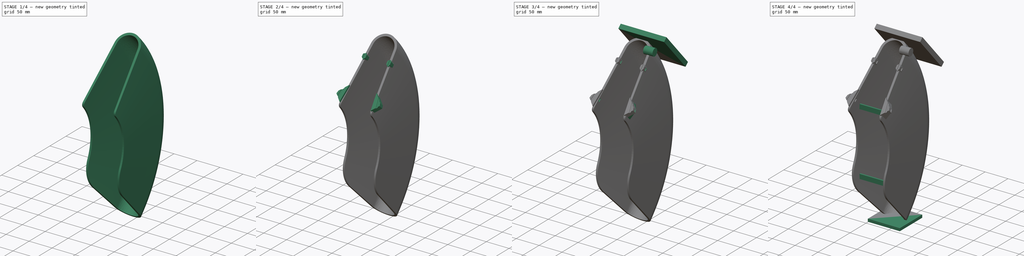
[diagram: build sequence overview — one tinted view per stage of 4, left to right]
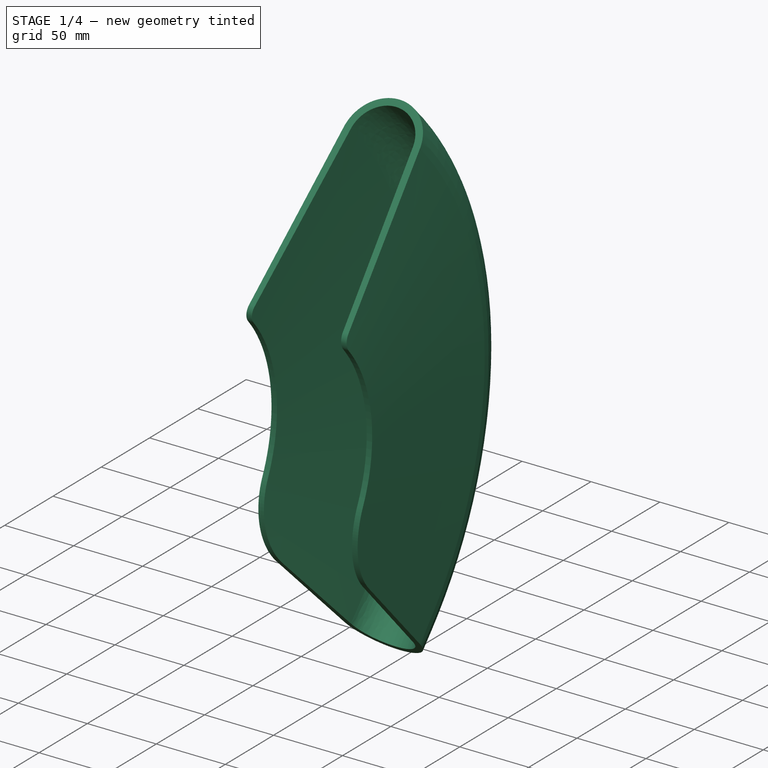
[diagram: stage 1 of 4 — iso view after this stage's code; geometry added in this stage tinted green]
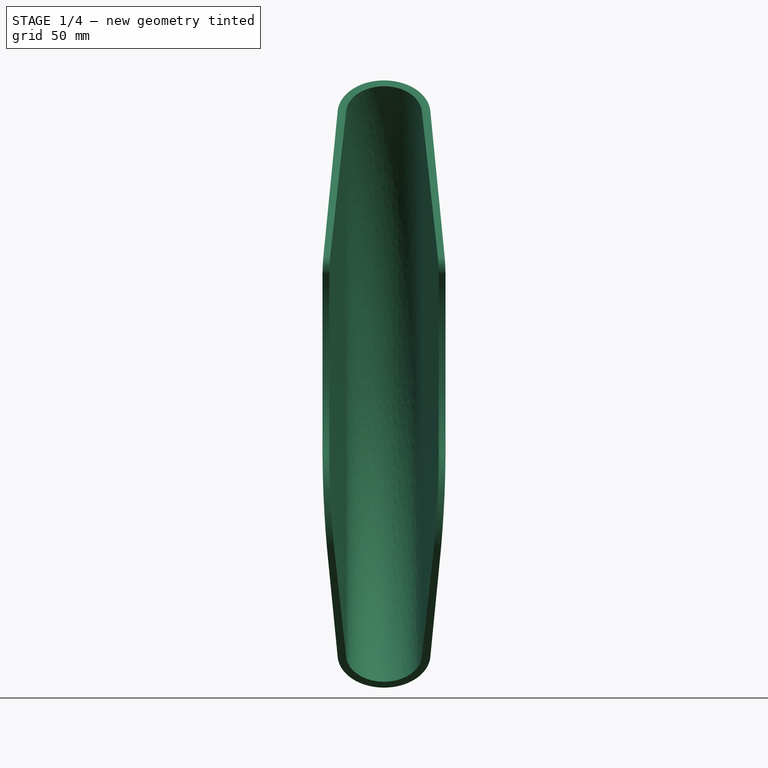
[diagram: stage 1 of 4 — front view after this stage's code; geometry added in this stage tinted green]
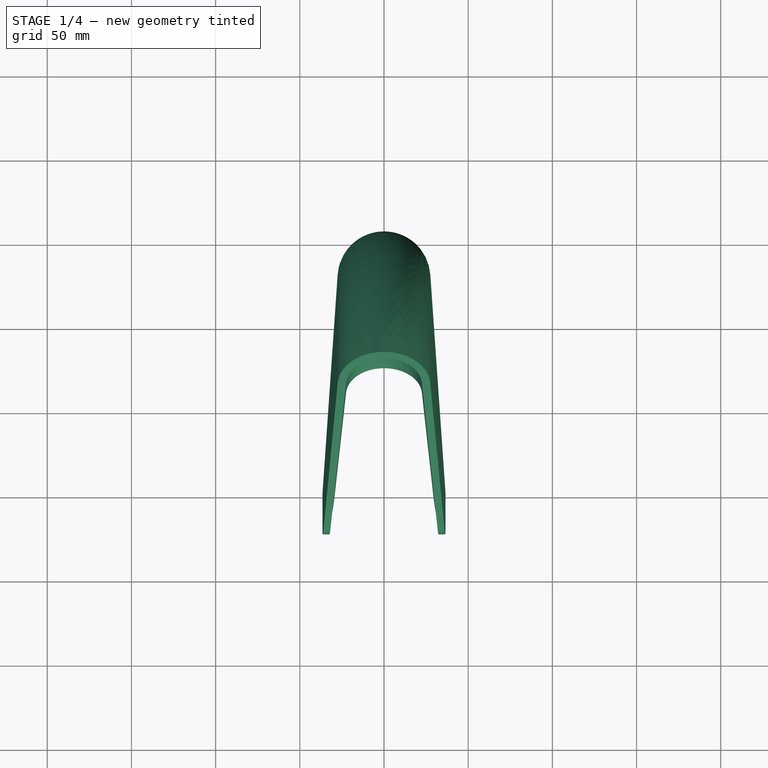
[diagram: stage 1 of 4 — top view after this stage's code; geometry added in this stage tinted green]
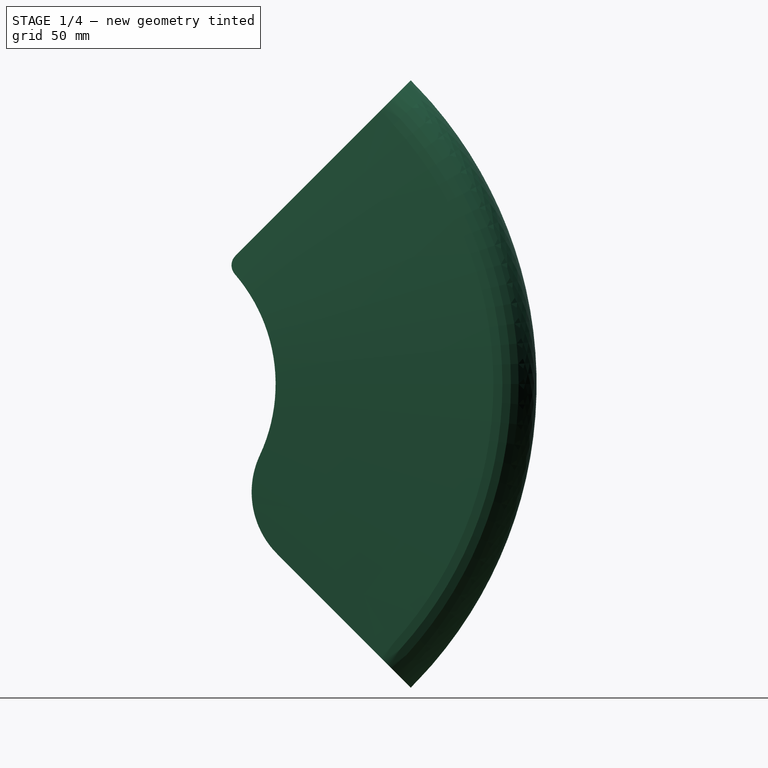
[diagram: stage 1 of 4 — right view after this stage's code; geometry added in this stage tinted green]
FCSTD DOCUMENT  (FreeCAD 0.19R)
Label: Mudguard4
License: All rights reserved
LicenseURL: http://en.wikipedia.org/wiki/All_rights_reserved
objects: Sketcher::SketchObject×4, Part::Box×4, PartDesign::Fillet×2, PartDesign::Pocket×2, PartDesign::Chamfer×2, PartDesign::Revolution×1, PartDesign::ShapeBinder×1, PartDesign::Pad×1, Part::Cylinder×1, PartDesign::Body×1
note: 27 computed .brp shape members not serialized (recipe doc carries the construction recipe); baked Part::Feature solids carry a one-line shape summary decoded from their .brp

FEATURE [Sketcher::SketchObject] Sketch
  FullyConstrained = false
  MapMode = 5
  Support = -> [XY_Plane]
  sketch-geometry (9):
    g0: LineSegment StartX=-38.02 StartY=255 StartZ=0 EndX=36.46 EndY=255 EndZ=0
    g1: ArcOfCircle CenterX=1e-15 CenterY=227.426 CenterZ=0 NormalX=0 NormalY=0 NormalZ=1 AngleXU=0 Radius=27.5737 StartAngle=0.0694168 EndAngle=3.07218
    g2: ArcOfCircle CenterX=0 CenterY=227.499 CenterZ=0 NormalX=0 NormalY=0 NormalZ=1 AngleXU=0 Radius=22.5673 StartAngle=0.0772218 EndAngle=3.06437
    g3: LineSegment StartX=-36.5 StartY=100 StartZ=0 EndX=-27.5073 EndY=229.339 EndZ=0
    g4: LineSegment StartX=-32.5 StartY=100 StartZ=0 EndX=-22.5 EndY=229.24 EndZ=0
    g5: LineSegment StartX=22.5 StartY=229.24 StartZ=0 EndX=32.5 EndY=100 EndZ=0
    g6: LineSegment StartX=-36.5 StartY=100 StartZ=0 EndX=-32.5 EndY=100 EndZ=0
    g7: LineSegment StartX=32.5 StartY=100 StartZ=0 EndX=36.5 EndY=100 EndZ=0
    g8: LineSegment StartX=36.5 StartY=100 StartZ=0 EndX=27.5073 EndY=229.339 EndZ=0
  constraints (23):
    c: Horizontal(g0)
    c: DistanceY(g0) = 255
    c: Tangent(g1,g0)
    c: Symmetric(g1,g1,g-2)
    c: Distance(g0) = 74.48
    c: DistanceX(g0) = 36.46
    c: Tangent(g3,g1) = 1.5708
    c: Coincident(g6,g3)
    c: Coincident(g6,g4)
    c: Distance(g6) = 4
    c: Tangent(g4,g2) = 1.5708
    c: Tangent(g5,g2) = 1.5708
    c: PointOnObject(g2,g-2)
    c: Coincident(g5,g7)
    c: Coincident(g7,g8)
    c: Coincident(g8,g1)
    c: Symmetric(g5,g4,g-2)
    c: Symmetric(g7,g3,g-2)
    c: Horizontal(g7)
    c: Distance(g5,g4) = 65
    c: Distance(g2,g2) = 45
    c: Distance(g1,g5) = 5
    c: DistanceY(g7) = 100
FEATURE [PartDesign::Revolution] Revolution
  Angle = 90
  Axis = (1,0,0)
  Base = (0,0,0)
  Midplane = true
  Profile = -> Sketch
  ReferenceAxis = -> Sketch [H_Axis]
FEATURE [PartDesign::Fillet] Fillet
  Base = -> Revolution [Edge7,Edge19]
  BaseFeature = -> Revolution
  Radius = 8
  SupportTransform = false
FEATURE [PartDesign::Fillet] Fillet001
  Base = -> Fillet [Edge7,Edge14]
  BaseFeature = -> Fillet
  Radius = 52
  SupportTransform = false
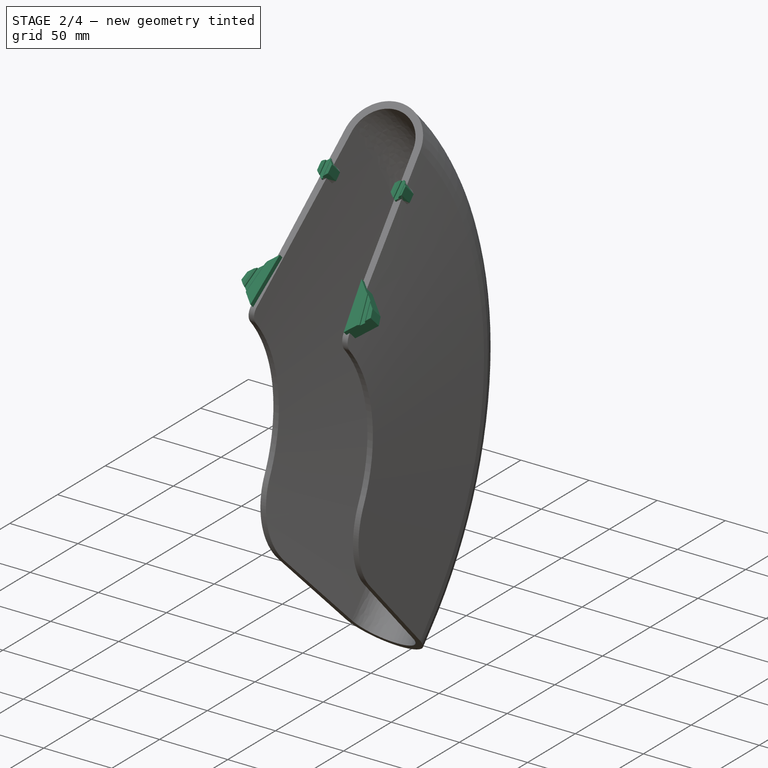
[diagram: stage 2 of 4 — iso view after this stage's code; geometry added in this stage tinted green]
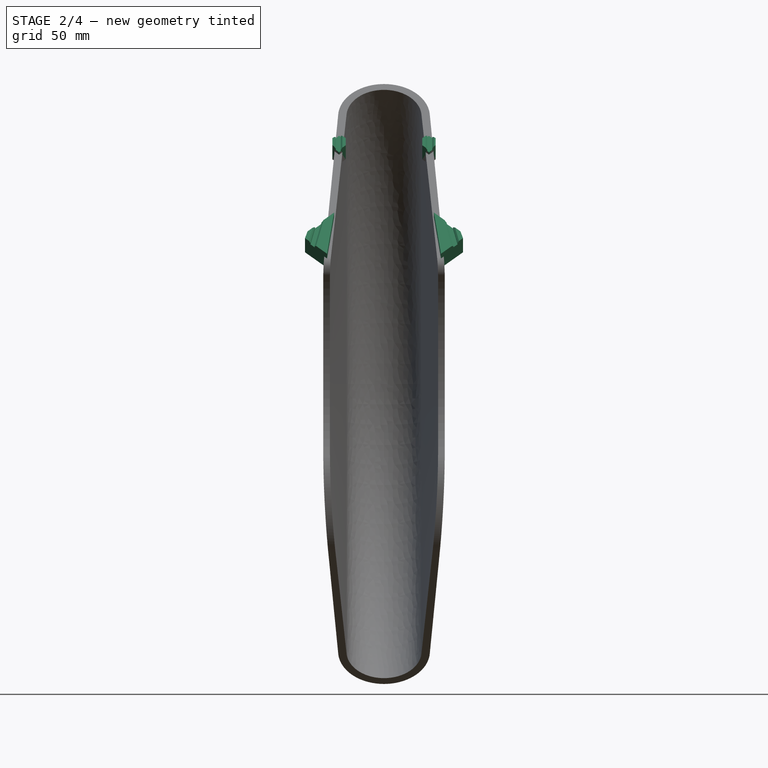
[diagram: stage 2 of 4 — front view after this stage's code; geometry added in this stage tinted green]
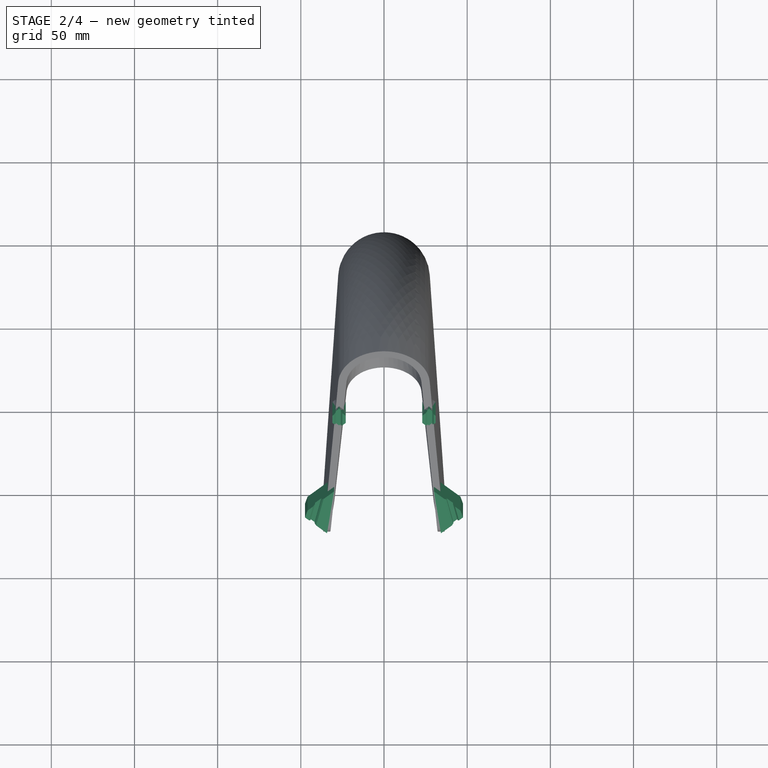
[diagram: stage 2 of 4 — top view after this stage's code; geometry added in this stage tinted green]
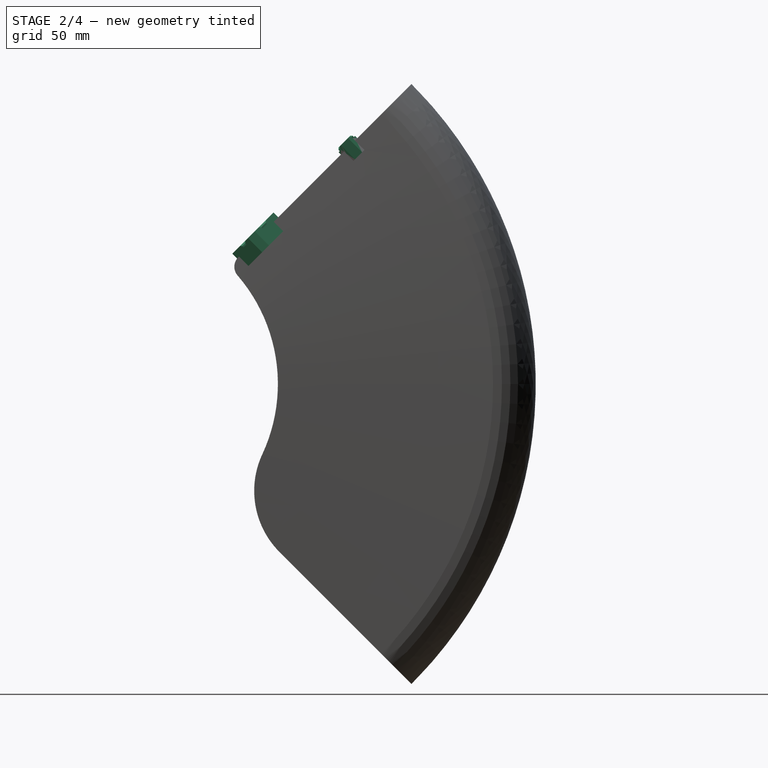
[diagram: stage 2 of 4 — right view after this stage's code; geometry added in this stage tinted green]
FEATURE [Sketcher::SketchObject] Sketch002
  ExternalGeometry = -> [Fillet001]
  FullyConstrained = true
  MapMode = 5
  Placement = pos=(0,0,0) rot=(1,0,0;0.785398rad)
  Support = -> [Fillet001]
  sketch-geometry (21):
    g0: LineSegment StartX=-29.785 StartY=255 StartZ=0 EndX=29.785 EndY=255 EndZ=0
    g1: LineSegment StartX=-45.9471 StartY=125.796 StartZ=0 EndX=-47.5 EndY=120 EndZ=0
    g2: LineSegment StartX=-47.5 StartY=120 StartZ=0 EndX=-34.2488 EndY=106.749 EndZ=0
    g3: LineSegment StartX=-34.2488 StartY=106.749 StartZ=0 EndX=-30 EndY=141.743 EndZ=0
    g4: LineSegment StartX=-30 StartY=141.743 StartZ=0 EndX=-45.9471 EndY=125.796 EndZ=0
    g5: LineSegment StartX=45.9471 StartY=125.796 StartZ=0 EndX=47.5 EndY=120 EndZ=0
    g6: LineSegment StartX=47.5 StartY=120 StartZ=0 EndX=34.2488 EndY=106.749 EndZ=0
    g7: LineSegment StartX=34.2488 StartY=106.749 StartZ=0 EndX=30 EndY=141.743 EndZ=0
    g8: LineSegment StartX=30 StartY=141.743 StartZ=0 EndX=45.9471 EndY=125.796 EndZ=0
    g9: LineSegment StartX=27 StartY=195 StartZ=0 EndX=31 EndY=199 EndZ=0
    g10: LineSegment StartX=31 StartY=199 StartZ=0 EndX=31 EndY=205 EndZ=0
    g11: LineSegment StartX=31 StartY=205 StartZ=0 EndX=27 EndY=209 EndZ=0
    g12: LineSegment StartX=27 StartY=209 StartZ=0 EndX=23 EndY=205 EndZ=0
    g13: LineSegment StartX=23 StartY=205 StartZ=0 EndX=23 EndY=199 EndZ=0
    g14: LineSegment StartX=23 StartY=199 StartZ=0 EndX=27 EndY=195 EndZ=0
    g15: LineSegment StartX=-27 StartY=195 StartZ=0 EndX=-23 EndY=199 EndZ=0
    g16: LineSegment StartX=-23 StartY=199 StartZ=0 EndX=-23 EndY=205 EndZ=0
    g17: LineSegment StartX=-23 StartY=205 StartZ=0 EndX=-27 EndY=209 EndZ=0
    g18: LineSegment StartX=-27 StartY=209 StartZ=0 EndX=-31 EndY=205 EndZ=0
    g19: LineSegment StartX=-31 StartY=205 StartZ=0 EndX=-31 EndY=199 EndZ=0
    g20: LineSegment StartX=-31 StartY=199 StartZ=0 EndX=-27 EndY=195 EndZ=0
  constraints (56):
    c: Coincident(g1,g2)
    c: Coincident(g2,g3)
    c: Coincident(g3,g4)
    c: Coincident(g4,g1)
    c: Coincident(g5,g6)
    c: Coincident(g6,g7)
    c: Coincident(g7,g8)
    c: Coincident(g8,g5)
    c: Symmetric(g7,g3,g-2)
    c: Symmetric(g6,g2,g-2)
    c: Equal(g5,g1)
    c: Symmetric(g5,g1,g-2)
    c: Equal(g2,g6)
    c: Distance(g5,g1) = 95
    c: Angle(g6) = -2.35619
    c: Coincident(g9,g10)
    c: Vertical(g10)
    c: Coincident(g10,g11)
    c: Coincident(g11,g12)
    c: Coincident(g12,g13)
    c: Vertical(g13)
    c: Coincident(g13,g14)
    c: Coincident(g14,g9)
    c: Coincident(g15,g16)
    c: Coincident(g16,g17)
    c: Coincident(g17,g18)
    c: Coincident(g18,g19)
    c: Coincident(g19,g20)
    c: Coincident(g20,g15)
    c: Distance(g5) = 6
    c: Angle(g5) = -1.309
    c: Symmetric(g0,g0,g-2)
    c: Distance(g0) = 59.57
    c: Tangent(g0,g-3)
    c: Angle(g8) = -0.785398
    c: Distance(g7,g3) = 60
    c: Distance(g9,g13) = 8
    c: Symmetric(g13,g15,g-2)
    c: Symmetric(g12,g16,g-2)
    c: Symmetric(g9,g19,g-2)
    c: Symmetric(g10,g18,g-2)
    c: Equal(g13,g19)
    c: Distance(g10) = 6
    c: Angle(g12,g11) = 1.5708
    c: Equal(g18,g12)
    c: Equal(g20,g14)
    c: Equal(g15,g9)
    c: Equal(g17,g11)
    c: Angle(g15,g20) = 1.5708
    c: Equal(g20,g15)
    c: Distance(g10,g0) = 50
    c: DistanceY(g12,g10) = 0
    c: Distance(g9,g19) = 62
    c: Distance(g5,g0) = 135
    c: Distance(g2) = 18.74
    c: Equal(g17,g18)
FEATURE [PartDesign::Pad] Pad001
  BaseFeature = -> Fillet001
  Direction = (1,1,1)
  Length = 4
  Length2 = 8
  Profile = -> Sketch002
  Reversed = true
  Type = 4
FEATURE [Sketcher::SketchObject] Sketch003
  FullyConstrained = true
  MapMode = 5
  Placement = pos=(1e-16,-2.82843,2.82843) rot=(1,0,0;0.785398rad)
  Support = -> [Pad001]
  sketch-geometry (16):
    g0: LineSegment StartX=26 StartY=209.52 StartZ=0 EndX=29 EndY=209.52 EndZ=0
    g1: LineSegment StartX=29 StartY=209.52 StartZ=0 EndX=29 EndY=194.52 EndZ=0
    g2: LineSegment StartX=29 StartY=194.52 StartZ=0 EndX=26 EndY=194.52 EndZ=0
    g3: LineSegment StartX=26 StartY=194.52 StartZ=0 EndX=26 EndY=209.52 EndZ=0
    g4: LineSegment StartX=-29 StartY=209.52 StartZ=0 EndX=-26 EndY=209.52 EndZ=0
    g5: LineSegment StartX=-26 StartY=209.52 StartZ=0 EndX=-26 EndY=194.52 EndZ=0
    g6: LineSegment StartX=-26 StartY=194.52 StartZ=0 EndX=-29 EndY=194.52 EndZ=0
    g7: LineSegment StartX=-29 StartY=194.52 StartZ=0 EndX=-29 EndY=209.52 EndZ=0
    g8: LineSegment StartX=35 StartY=146.87 StartZ=0 EndX=45 EndY=97.88 EndZ=0
    g9: LineSegment StartX=45 StartY=97.88 StartZ=0 EndX=47.9394 EndY=98.48 EndZ=0
    g10: LineSegment StartX=47.9394 StartY=98.48 StartZ=0 EndX=37.9394 EndY=147.47 EndZ=0
    g11: LineSegment StartX=37.9394 StartY=147.47 StartZ=0 EndX=35 EndY=146.87 EndZ=0
    g12: LineSegment StartX=-47.9394 StartY=98.48 StartZ=0 EndX=-45 EndY=97.88 EndZ=0
    g13: LineSegment StartX=-45 StartY=97.88 StartZ=0 EndX=-35 EndY=146.87 EndZ=0
    g14: LineSegment StartX=-47.9394 StartY=98.48 StartZ=0 EndX=-37.9394 EndY=147.47 EndZ=0
    g15: LineSegment StartX=-37.9394 StartY=147.47 StartZ=0 EndX=-35 EndY=146.87 EndZ=0
  constraints (45):
    c: Coincident(g0,g1)
    c: Coincident(g1,g2)
    c: Coincident(g2,g3)
    c: Coincident(g3,g0)
    c: Horizontal(g0)
    c: Horizontal(g2)
    c: Vertical(g1)
    c: Vertical(g3)
    c: Coincident(g4,g5)
    c: Coincident(g5,g6)
    c: Coincident(g6,g7)
    c: Coincident(g7,g4)
    c: Horizontal(g4)
    c: Horizontal(g6)
    c: Vertical(g5)
    c: Vertical(g7)
    c: Coincident(g8,g9)
    c: Coincident(g9,g10)
    c: Coincident(g10,g11)
    c: Coincident(g11,g8)
    c: Coincident(g12,g13)
    c: Equal(g9,g11)
    c: Equal(g8,g10)
    c: Symmetric(g12,g8,g-2)
    c: Perpendicular(g8,g9)
    c: Distance(g11) = 3
    c: Distance(g8,g12) = 90
    c: Coincident(g12,g14)
    c: Coincident(g14,g15)
    c: Coincident(g15,g13)
    c: Equal(g15,g11)
    c: Equal(g14,g13)
    c: Perpendicular(g14,g15)
    c: Symmetric(g8,g13,g-2)
    c: Distance(g10) = 50
    c: Equal(g12,g15)
    c: DistanceY(g8) = 97.88
    c: Distance(g13,g8) = 70
    c: Distance(g2) = 3
    c: Equal(g3,g5)
    c: Equal(g2,g6)
    c: Distance(g1,g5) = 55
    c: Symmetric(g5,g2,g-2)
    c: Distance(g1) = 15
    c: DistanceY(g0) = 209.52
FEATURE [PartDesign::Pocket] Pocket
  BaseFeature = -> Pad001
  Length = 2
  Length2 = 100
  Profile = -> Sketch003
  Type = 0
FEATURE [PartDesign::Chamfer] Chamfer
  Angle = 45
  Base = -> Pocket [Edge89,Edge161,Edge154,Edge134,Edge131,Edge128,Edge186,Edge183]
  BaseFeature = -> Pocket
  ChamferType = 0
  FlipDirection = false
  Size = 1
  Size2 = 1
  SupportTransform = false
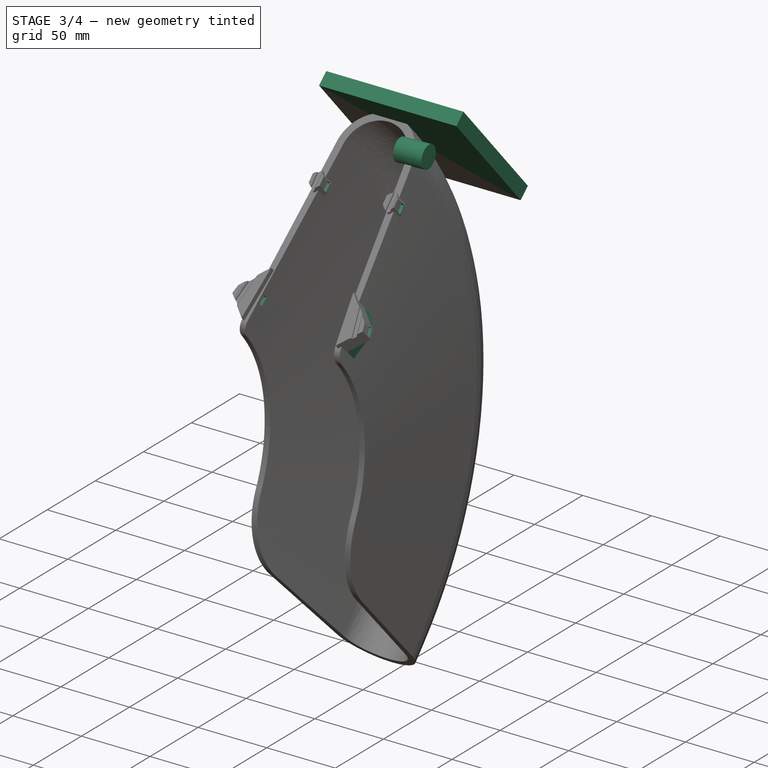
[diagram: stage 3 of 4 — iso view after this stage's code; geometry added in this stage tinted green]
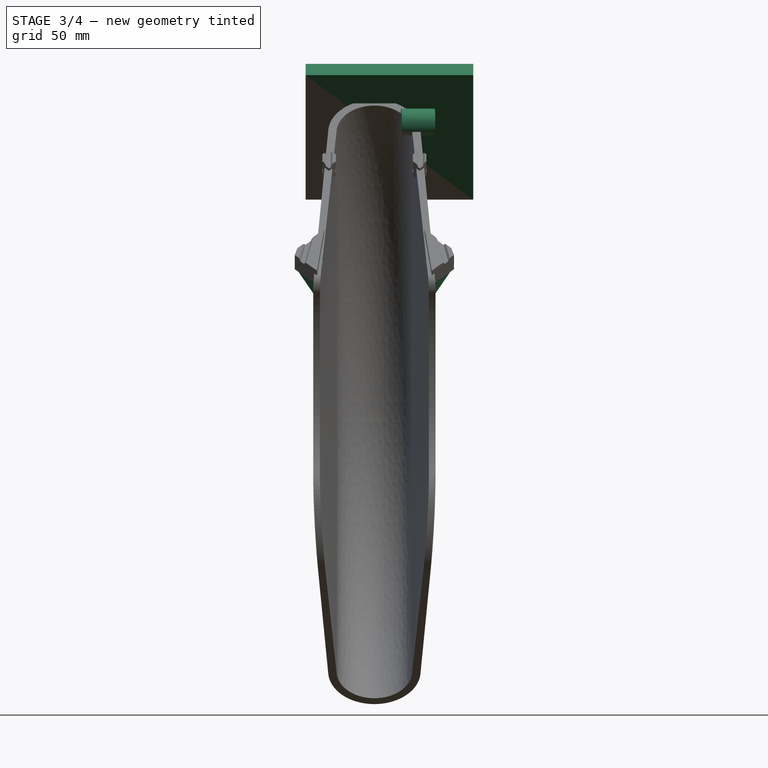
[diagram: stage 3 of 4 — front view after this stage's code; geometry added in this stage tinted green]
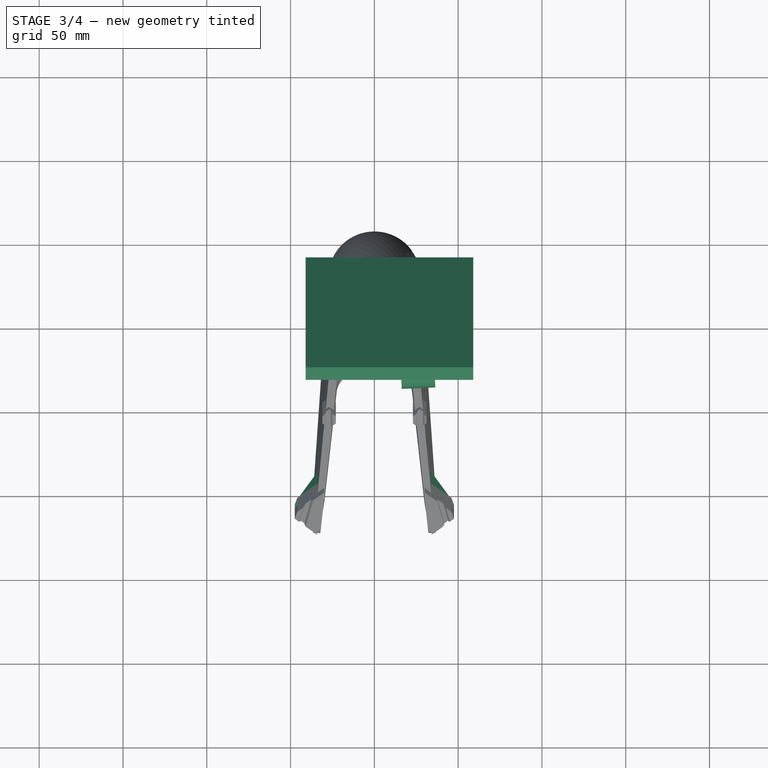
[diagram: stage 3 of 4 — top view after this stage's code; geometry added in this stage tinted green]
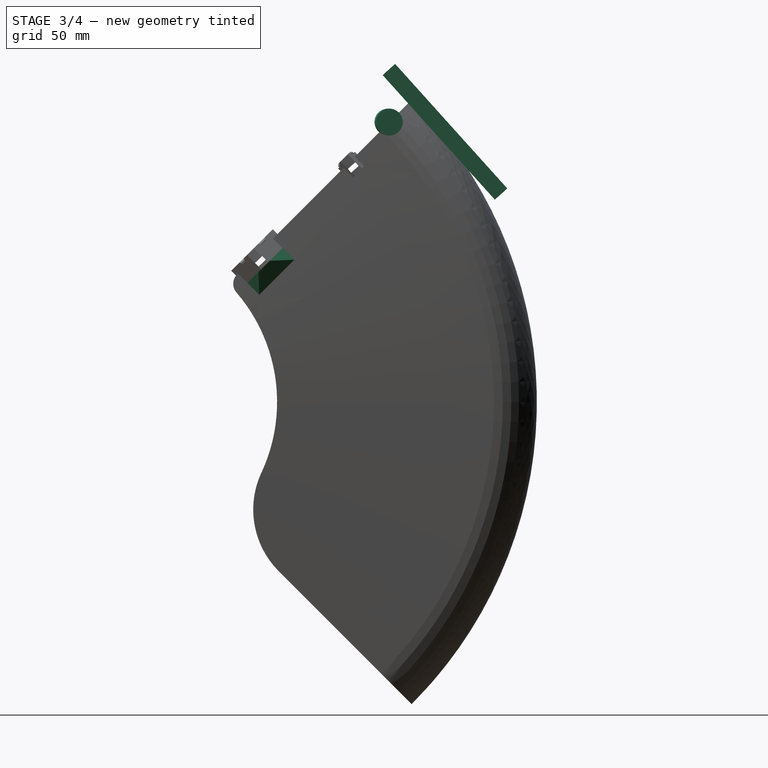
[diagram: stage 3 of 4 — right view after this stage's code; geometry added in this stage tinted green]
FEATURE [Part::Box] Box  label="Cube"
  AttacherType = Attacher::AttachEngine3D
  Height = 10
  Length = 100
  Placement = pos=(-41,163,195) rot=(1,0,0;-0.837758rad)
  Width = 100
FEATURE [Part::Cylinder] Cylinder
  Angle = 360
  AttacherType = Attacher::AttachEngine3D
  Height = 20
  Placement = pos=(36,167,167) rot=(0,-0.999056,0.043437;1.5708rad)
  Radius = 8
FEATURE [PartDesign::Chamfer] Chamfer001
  Angle = 45
  Base = -> Chamfer [Edge63,Edge143]
  BaseFeature = -> Chamfer
  ChamferType = 0
  FlipDirection = false
  Size = 10
  Size2 = 1
  SupportTransform = false
FEATURE [Sketcher::SketchObject] Sketch004
  FullyConstrained = false
  MapMode = 5
  Placement = pos=(-31,0,0) rot=(0.57735,-0.57735,-0.57735;2.0944rad)
  Support = -> [Chamfer001]
  sketch-geometry (8):
    g0: LineSegment StartX=-148.664 StartY=140.817 StartZ=0 EndX=-144.218 EndY=136.788 EndZ=0
    g1: LineSegment StartX=-144.218 StartY=136.788 StartZ=0 EndX=-142.203 EndY=139.011 EndZ=0
    g2: LineSegment StartX=-142.203 StartY=139.011 StartZ=0 EndX=-146.649 EndY=143.04 EndZ=0
    g3: LineSegment StartX=-146.649 StartY=143.04 StartZ=0 EndX=-148.664 EndY=140.817 EndZ=0
    g4: LineSegment StartX=-86.8427 StartY=82.8562 StartZ=0 EndX=-88.9479 EndY=80.7188 EndZ=0
    g5: LineSegment StartX=-88.9479 StartY=80.7188 StartZ=0 EndX=-93.2225 EndY=84.9292 EndZ=0
    g6: LineSegment StartX=-93.2225 StartY=84.9292 StartZ=0 EndX=-91.1174 EndY=87.0665 EndZ=0
    g7: LineSegment StartX=-91.1174 StartY=87.0665 StartZ=0 EndX=-86.8427 EndY=82.8562 EndZ=0
  constraints (18):
    c: Coincident(g0,g1)
    c: Coincident(g1,g2)
    c: Coincident(g2,g3)
    c: Coincident(g3,g0)
    c: Coincident(g4,g5)
    c: Coincident(g5,g6)
    c: Coincident(g6,g7)
    c: Coincident(g7,g4)
    c: Equal(g1,g3)
    c: Equal(g3,g6)
    c: Equal(g6,g4)
    c: Distance(g6) = 3
    c: Perpendicular(g0,g3)
    c: Equal(g2,g0)
    c: Equal(g0,g5)
    c: Equal(g5,g7)
    c: Distance(g0) = 6
    c: Perpendicular(g5,g4)
FEATURE [PartDesign::Pocket] Pocket001
  BaseFeature = -> Chamfer001
  Length = 200
  Length2 = 100
  Profile = -> Sketch004
  Type = 4
FEATURE [PartDesign::Body] Body
  Group = -> [Sketch,Revolution,CopyFusion,Fillet,Fillet001,Sketch002,Pad001,Sketch003,Pocket,Chamfer,Chamfer001,Sketch004,Pocket001]
  Origin = -> Origin
  Tip = -> Pocket001
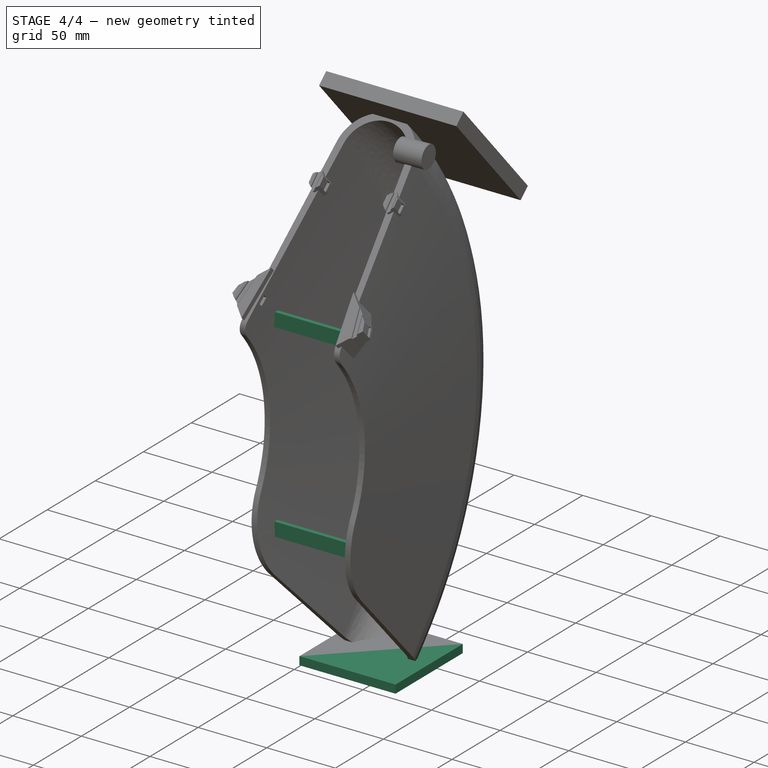
[diagram: stage 4 of 4 — iso view after this stage's code; geometry added in this stage tinted green]
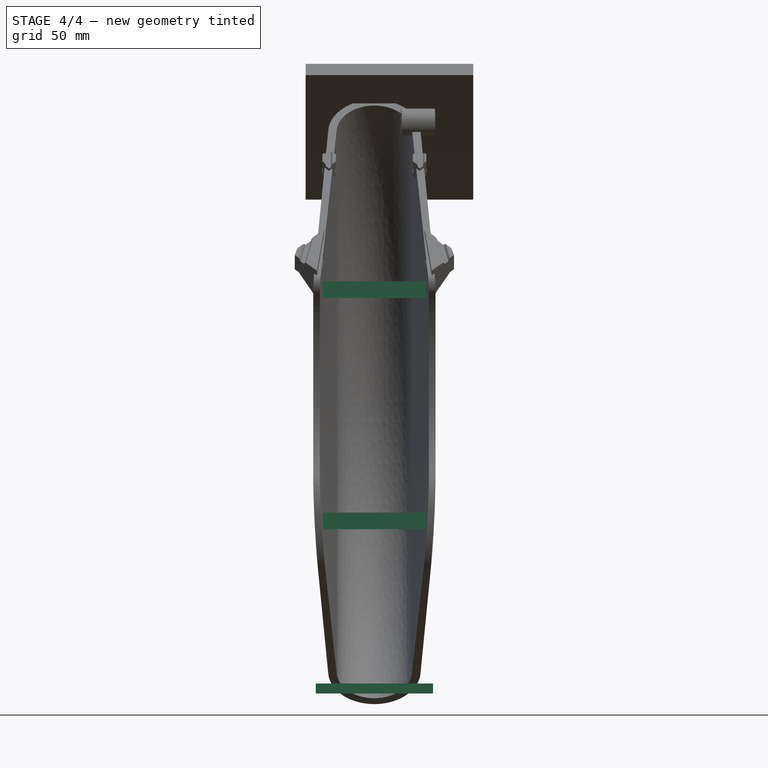
[diagram: stage 4 of 4 — front view after this stage's code; geometry added in this stage tinted green]
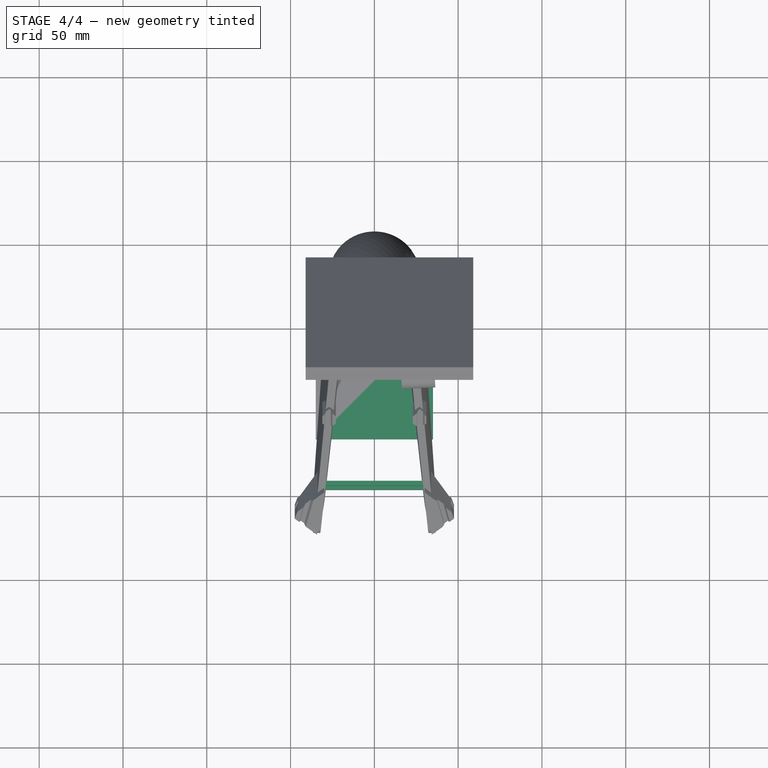
[diagram: stage 4 of 4 — top view after this stage's code; geometry added in this stage tinted green]
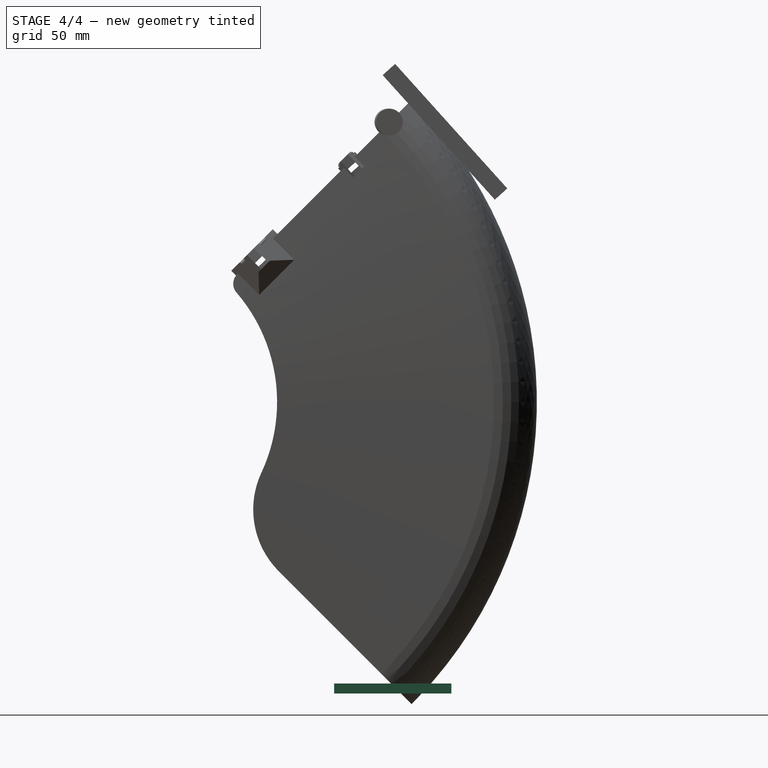
[diagram: stage 4 of 4 — right view after this stage's code; geometry added in this stage tinted green]
FEATURE [PartDesign::ShapeBinder] CopyFusion
  Placement = pos=(0,0,0) rot=(1,0,0;0.785398rad)
  TraceSupport = false
FEATURE [Part::Box] Box001  label="Cube001"
  AttacherType = Attacher::AttachEngine3D
  Height = 6
  Length = 70
  Placement = pos=(-35,134,-174) rot=(0,0,1;0rad)
  Width = 70
FEATURE [Part::Box] Box002  label="Cube002"
  AttacherType = Attacher::AttachEngine3D
  Height = 10
  Length = 67
  Placement = pos=(-34,102,-76) rot=(0,0,1;0rad)
  Width = 3
FEATURE [Part::Box] Box003  label="Cube003"
  AttacherType = Attacher::AttachEngine3D
  Height = 10
  Length = 68
  Placement = pos=(-34,102,62) rot=(0,0,1;0rad)
  Width = 3
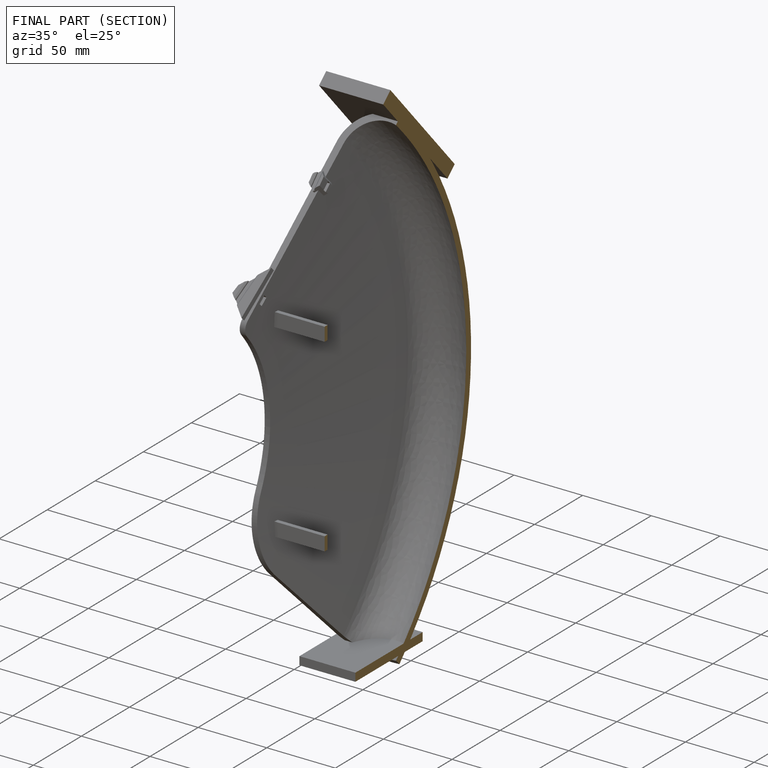
[diagram: finished part — half-section view (interior)]
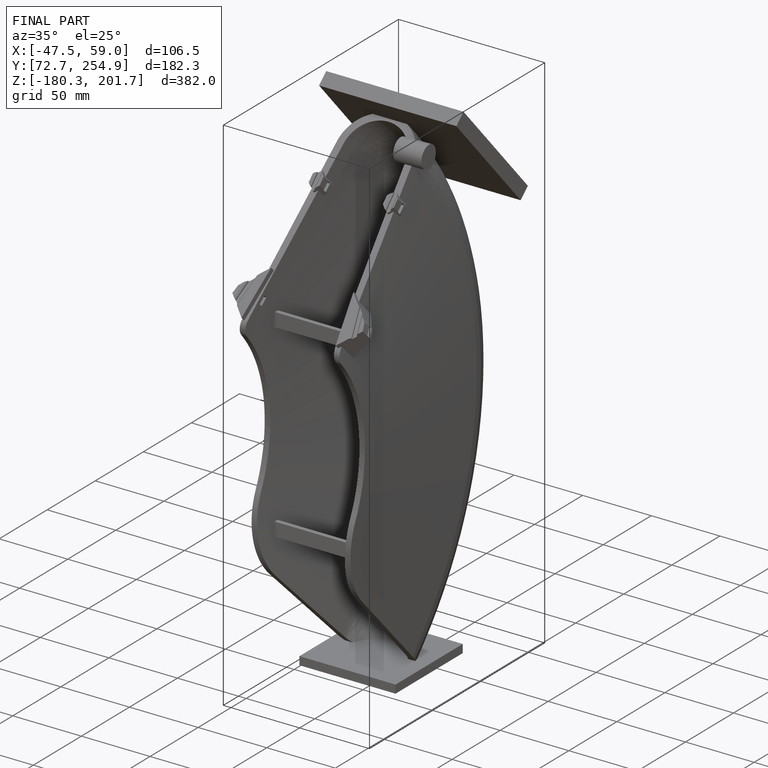
[diagram: finished part — iso view with bounding-box wireframe]
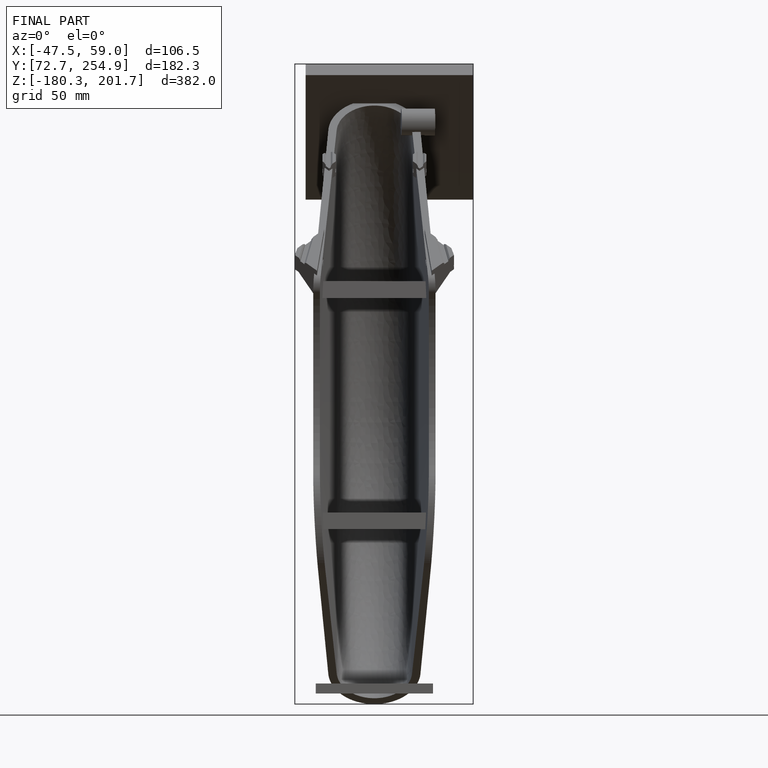
[diagram: finished part — front view with bounding-box wireframe]
